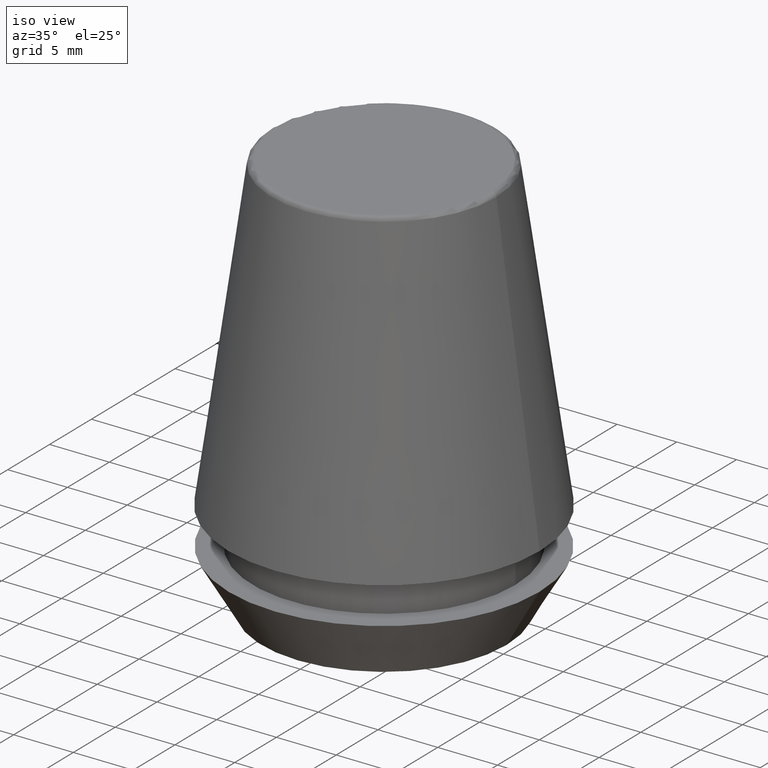
[diagram: clean part render]
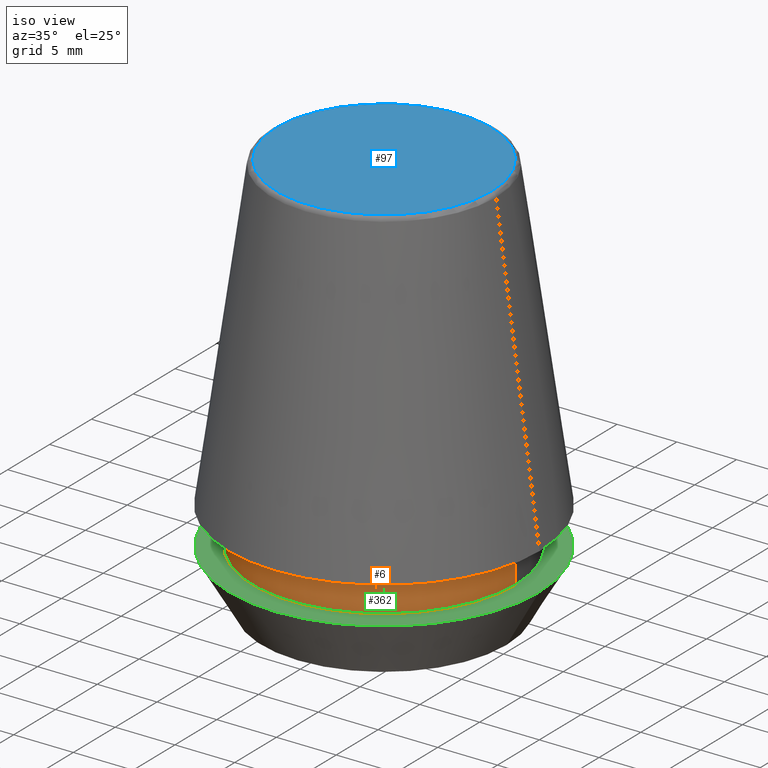
[diagram: same view with three faces highlighted in distinct colors, each labeled with its STEP entity id]
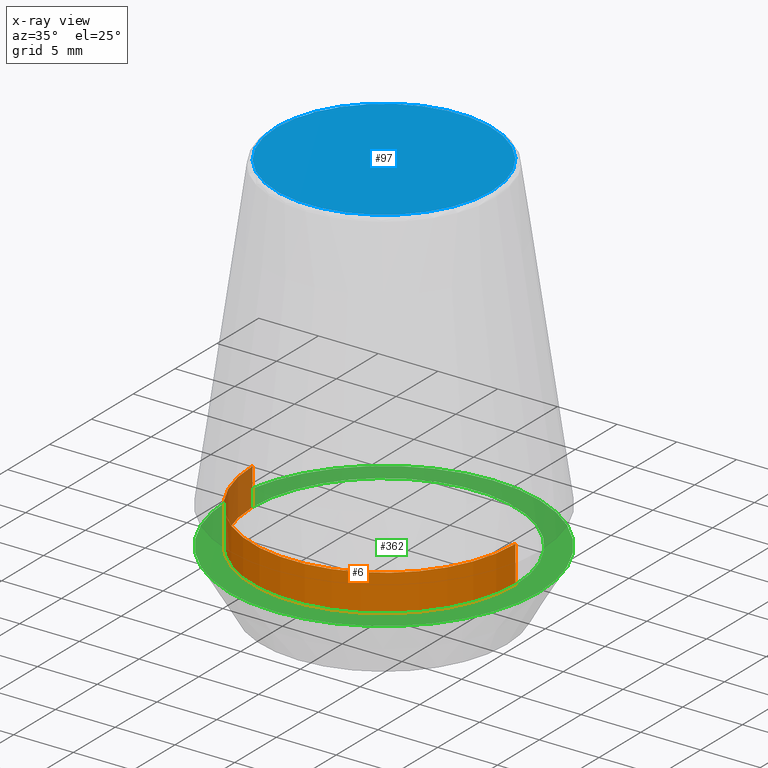
[diagram: x-ray of the same camera — body ghosted, the three highlighted faces saturated]
A machine part, iso view with three faces highlighted in distinct colors.
The next image is the same camera in x-ray (body ghosted, the three faces saturated) — at least one of them is partly hidden behind the body in this view.
Their STEP definitions:

[orange] entity #6 — the highlighted cylindrical surface (partial cylindrical patch) has radius 11 mm, axis along (-0, -0, 1).
#5 = CARTESIAN_POINT ( 'NONE',  ( -11.00000000000000000, 1.347111479062088400E-015, 101.8074564848000400 ) ) ;
#6 = ADVANCED_FACE ( 'NONE', ( #219 ), #246, .T. ) ;
#25 = CARTESIAN_POINT ( 'NONE',  ( 11.00000000000000000, 0.0000000000000000000, 4.742050807568884500 ) ) ;
#29 = VECTOR ( 'NONE', #67, 1000.000000000000000 ) ;
#62 = AXIS2_PLACEMENT_3D ( 'NONE', #301, #122, #179 ) ;
#67 = DIRECTION ( 'NONE',  ( -0.0000000000000000000, -0.0000000000000000000, 1.000000000000000000 ) ) ;
#76 = EDGE_CURVE ( 'NONE', #193, #178, #279, .T. ) ;
#81 = AXIS2_PLACEMENT_3D ( 'NONE', #143, #265, #232 ) ;
#86 = CARTESIAN_POINT ( 'NONE',  ( 11.00000000000000000, 0.0000000000000000000, 101.8074564848000400 ) ) ;
#88 = DIRECTION ( 'NONE',  ( -0.0000000000000000000, -0.0000000000000000000, 1.000000000000000000 ) ) ;
#95 = EDGE_CURVE ( 'NONE', #178, #253, #374, .T. ) ;
#96 = CARTESIAN_POINT ( 'NONE',  ( -11.00000000000000000, 1.347111479062088400E-015, 4.742050807568884500 ) ) ;
#103 = VECTOR ( 'NONE', #88, 1000.000000000000000 ) ;
#109 = ORIENTED_EDGE ( 'NONE', *, *, #378, .F. ) ;
#122 = DIRECTION ( 'NONE',  ( -0.0000000000000000000, -0.0000000000000000000, 1.000000000000000000 ) ) ;
#127 = AXIS2_PLACEMENT_3D ( 'NONE', #318, #167, #373 ) ;
#143 = CARTESIAN_POINT ( 'NONE',  ( 0.0000000000000000000, 0.0000000000000000000, 4.742050807568884500 ) ) ;
#148 = CARTESIAN_POINT ( 'NONE',  ( -11.00000000000000000, 1.347111479062088400E-015, 7.842050807568890400 ) ) ;
#167 = DIRECTION ( 'NONE',  ( -0.0000000000000000000, -0.0000000000000000000, 1.000000000000000000 ) ) ;
#169 = CARTESIAN_POINT ( 'NONE',  ( 11.00000000000000000, 0.0000000000000000000, 7.842050807568890400 ) ) ;
#178 = VERTEX_POINT ( 'NONE', #25 ) ;
#179 = DIRECTION ( 'NONE',  ( 1.000000000000000000, 0.0000000000000000000, 0.0000000000000000000 ) ) ;
#190 = EDGE_LOOP ( 'NONE', ( #109, #292, #314, #215 ) ) ;
#193 = VERTEX_POINT ( 'NONE', #96 ) ;
#215 = ORIENTED_EDGE ( 'NONE', *, *, #315, .F. ) ;
#219 = FACE_OUTER_BOUND ( 'NONE', #190, .T. ) ;
#227 = CIRCLE ( 'NONE', #62, 11.00000000000000000 ) ;
#232 = DIRECTION ( 'NONE',  ( 1.000000000000000000, 0.0000000000000000000, 0.0000000000000000000 ) ) ;
#246 = CYLINDRICAL_SURFACE ( 'NONE', #127, 11.00000000000000000 ) ;
#253 = VERTEX_POINT ( 'NONE', #169 ) ;
#265 = DIRECTION ( 'NONE',  ( -0.0000000000000000000, -0.0000000000000000000, 1.000000000000000000 ) ) ;
#279 = CIRCLE ( 'NONE', #81, 11.00000000000000000 ) ;
#292 = ORIENTED_EDGE ( 'NONE', *, *, #76, .T. ) ;
#301 = CARTESIAN_POINT ( 'NONE',  ( 0.0000000000000000000, 0.0000000000000000000, 7.842050807568890400 ) ) ;
#314 = ORIENTED_EDGE ( 'NONE', *, *, #95, .T. ) ;
#315 = EDGE_CURVE ( 'NONE', #356, #253, #227, .T. ) ;
#318 = CARTESIAN_POINT ( 'NONE',  ( 0.0000000000000000000, 0.0000000000000000000, 101.8074564848000400 ) ) ;
#349 = LINE ( 'NONE', #5, #29 ) ;
#356 = VERTEX_POINT ( 'NONE', #148 ) ;
#373 = DIRECTION ( 'NONE',  ( 1.000000000000000000, 0.0000000000000000000, 0.0000000000000000000 ) ) ;
#374 = LINE ( 'NONE', #86, #103 ) ;
#378 = EDGE_CURVE ( 'NONE', #193, #356, #349, .T. ) ;

[blue] entity #97 — the highlighted planar face has unit normal (0, 0, -1).
#20 = FACE_OUTER_BOUND ( 'NONE', #216, .T. ) ;
#43 = ORIENTED_EDGE ( 'NONE', *, *, #302, .T. ) ;
#51 = VERTEX_POINT ( 'NONE', #173 ) ;
#56 = DIRECTION ( 'NONE',  ( -1.000000000000000000, 0.0000000000000000000, -0.0000000000000000000 ) ) ;
#75 = VERTEX_POINT ( 'NONE', #231 ) ;
#93 = DIRECTION ( 'NONE',  ( -0.0000000000000000000, -0.0000000000000000000, 1.000000000000000000 ) ) ;
#97 = ADVANCED_FACE ( 'NONE', ( #20 ), #200, .F. ) ;
#123 = DIRECTION ( 'NONE',  ( 1.000000000000000000, 0.0000000000000000000, 0.0000000000000000000 ) ) ;
#138 = DIRECTION ( 'NONE',  ( 1.000000000000000000, 0.0000000000000000000, 0.0000000000000000000 ) ) ;
#147 = CARTESIAN_POINT ( 'NONE',  ( 0.0000000000000000000, 0.0000000000000000000, 34.00000000000000000 ) ) ;
#173 = CARTESIAN_POINT ( 'NONE',  ( -9.012603057622234500, 1.127980121063915600E-015, 34.00000000000000000 ) ) ;
#200 = PLANE ( 'NONE',  #287 ) ;
#207 = ORIENTED_EDGE ( 'NONE', *, *, #322, .T. ) ;
#216 = EDGE_LOOP ( 'NONE', ( #43, #207 ) ) ;
#231 = CARTESIAN_POINT ( 'NONE',  ( 9.012603057622234500, 0.0000000000000000000, 34.00000000000000000 ) ) ;
#248 = AXIS2_PLACEMENT_3D ( 'NONE', #300, #93, #123 ) ;
#269 = CARTESIAN_POINT ( 'NONE',  ( 0.0000000000000000000, 9.012603057622234500, 34.00000000000000000 ) ) ;
#270 = DIRECTION ( 'NONE',  ( -0.0000000000000000000, -0.0000000000000000000, 1.000000000000000000 ) ) ;
#287 = AXIS2_PLACEMENT_3D ( 'NONE', #269, #385, #56 ) ;
#300 = CARTESIAN_POINT ( 'NONE',  ( 0.0000000000000000000, 0.0000000000000000000, 34.00000000000000000 ) ) ;
#302 = EDGE_CURVE ( 'NONE', #75, #51, #387, .T. ) ;
#320 = CIRCLE ( 'NONE', #248, 9.012603057622234500 ) ;
#322 = EDGE_CURVE ( 'NONE', #51, #75, #320, .T. ) ;
#384 = AXIS2_PLACEMENT_3D ( 'NONE', #147, #270, #138 ) ;
#385 = DIRECTION ( 'NONE',  ( 0.0000000000000000000, 0.0000000000000000000, -1.000000000000000000 ) ) ;
#387 = CIRCLE ( 'NONE', #384, 9.012603057622234500 ) ;

[green] entity #362 — the highlighted planar face has unit normal (0, 0, -1).
#7 = CIRCLE ( 'NONE', #166, 13.00000000000000000 ) ;
#19 = DIRECTION ( 'NONE',  ( -0.0000000000000000000, -0.0000000000000000000, 1.000000000000000000 ) ) ;
#25 = CARTESIAN_POINT ( 'NONE',  ( 11.00000000000000000, 0.0000000000000000000, 4.742050807568884500 ) ) ;
#28 = DIRECTION ( 'NONE',  ( 1.000000000000000000, 0.0000000000000000000, 0.0000000000000000000 ) ) ;
#36 = FACE_BOUND ( 'NONE', #68, .T. ) ;
#54 = DIRECTION ( 'NONE',  ( 1.000000000000000000, 0.0000000000000000000, 0.0000000000000000000 ) ) ;
#68 = EDGE_LOOP ( 'NONE', ( #338, #139 ) ) ;
#76 = EDGE_CURVE ( 'NONE', #193, #178, #279, .T. ) ;
#81 = AXIS2_PLACEMENT_3D ( 'NONE', #143, #265, #232 ) ;
#96 = CARTESIAN_POINT ( 'NONE',  ( -11.00000000000000000, 1.347111479062088400E-015, 4.742050807568884500 ) ) ;
#105 = DIRECTION ( 'NONE',  ( -0.0000000000000000000, -0.0000000000000000000, 1.000000000000000000 ) ) ;
#115 = EDGE_CURVE ( 'NONE', #274, #120, #329, .T. ) ;
#120 = VERTEX_POINT ( 'NONE', #357 ) ;
#121 = EDGE_CURVE ( 'NONE', #178, #193, #255, .T. ) ;
#139 = ORIENTED_EDGE ( 'NONE', *, *, #76, .F. ) ;
#143 = CARTESIAN_POINT ( 'NONE',  ( 0.0000000000000000000, 0.0000000000000000000, 4.742050807568884500 ) ) ;
#150 = ORIENTED_EDGE ( 'NONE', *, *, #115, .T. ) ;
#159 = DIRECTION ( 'NONE',  ( 0.0000000000000000000, 0.0000000000000000000, -1.000000000000000000 ) ) ;
#166 = AXIS2_PLACEMENT_3D ( 'NONE', #352, #105, #290 ) ;
#175 = CARTESIAN_POINT ( 'NONE',  ( 0.0000000000000000000, 0.0000000000000000000, 4.742050807568884500 ) ) ;
#176 = EDGE_CURVE ( 'NONE', #120, #274, #7, .T. ) ;
#178 = VERTEX_POINT ( 'NONE', #25 ) ;
#180 = PLANE ( 'NONE',  #299 ) ;
#193 = VERTEX_POINT ( 'NONE', #96 ) ;
#197 = FACE_OUTER_BOUND ( 'NONE', #202, .T. ) ;
#202 = EDGE_LOOP ( 'NONE', ( #150, #366 ) ) ;
#232 = DIRECTION ( 'NONE',  ( 1.000000000000000000, 0.0000000000000000000, 0.0000000000000000000 ) ) ;
#252 = CARTESIAN_POINT ( 'NONE',  ( 13.00000000000000000, 0.0000000000000000000, 4.742050807568884500 ) ) ;
#255 = CIRCLE ( 'NONE', #343, 11.00000000000000000 ) ;
#265 = DIRECTION ( 'NONE',  ( -0.0000000000000000000, -0.0000000000000000000, 1.000000000000000000 ) ) ;
#274 = VERTEX_POINT ( 'NONE', #252 ) ;
#279 = CIRCLE ( 'NONE', #81, 11.00000000000000000 ) ;
#290 = DIRECTION ( 'NONE',  ( 1.000000000000000000, 0.0000000000000000000, 0.0000000000000000000 ) ) ;
#298 = DIRECTION ( 'NONE',  ( -0.0000000000000000000, -0.0000000000000000000, 1.000000000000000000 ) ) ;
#299 = AXIS2_PLACEMENT_3D ( 'NONE', #304, #159, #337 ) ;
#304 = CARTESIAN_POINT ( 'NONE',  ( 0.0000000000000000000, 13.00000000000000000, 4.742050807568884500 ) ) ;
#309 = AXIS2_PLACEMENT_3D ( 'NONE', #383, #19, #54 ) ;
#329 = CIRCLE ( 'NONE', #309, 13.00000000000000000 ) ;
#337 = DIRECTION ( 'NONE',  ( -1.000000000000000000, 0.0000000000000000000, -0.0000000000000000000 ) ) ;
#338 = ORIENTED_EDGE ( 'NONE', *, *, #121, .F. ) ;
#343 = AXIS2_PLACEMENT_3D ( 'NONE', #175, #298, #28 ) ;
#352 = CARTESIAN_POINT ( 'NONE',  ( 0.0000000000000000000, 0.0000000000000000000, 4.742050807568884500 ) ) ;
#357 = CARTESIAN_POINT ( 'NONE',  ( -13.00000000000000000, 1.592040838891559100E-015, 4.742050807568884500 ) ) ;
#362 = ADVANCED_FACE ( 'NONE', ( #36, #197 ), #180, .F. ) ;
#366 = ORIENTED_EDGE ( 'NONE', *, *, #176, .T. ) ;
#383 = CARTESIAN_POINT ( 'NONE',  ( 0.0000000000000000000, 0.0000000000000000000, 4.742050807568884500 ) ) ;